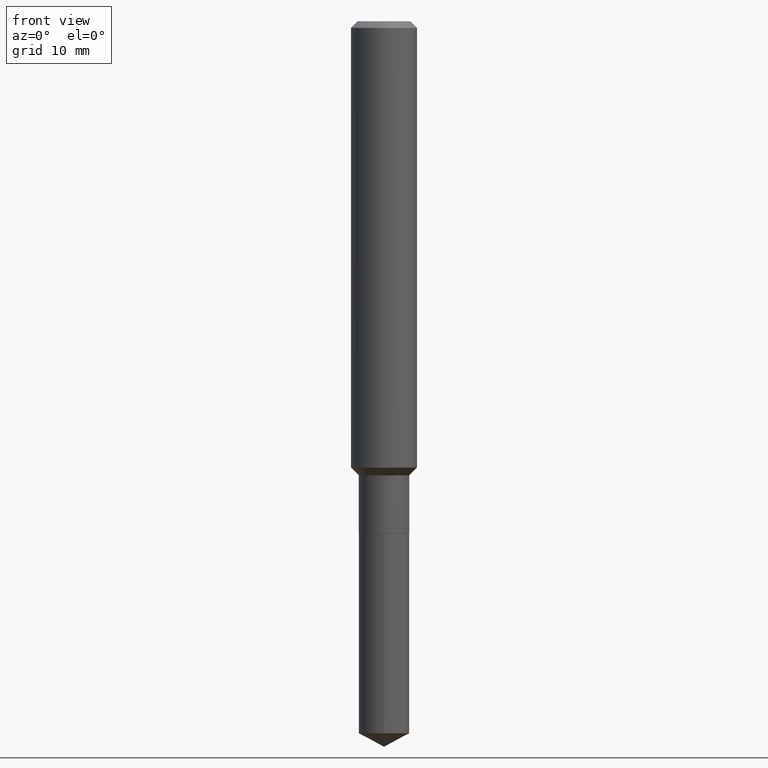
[diagram: clean part render]
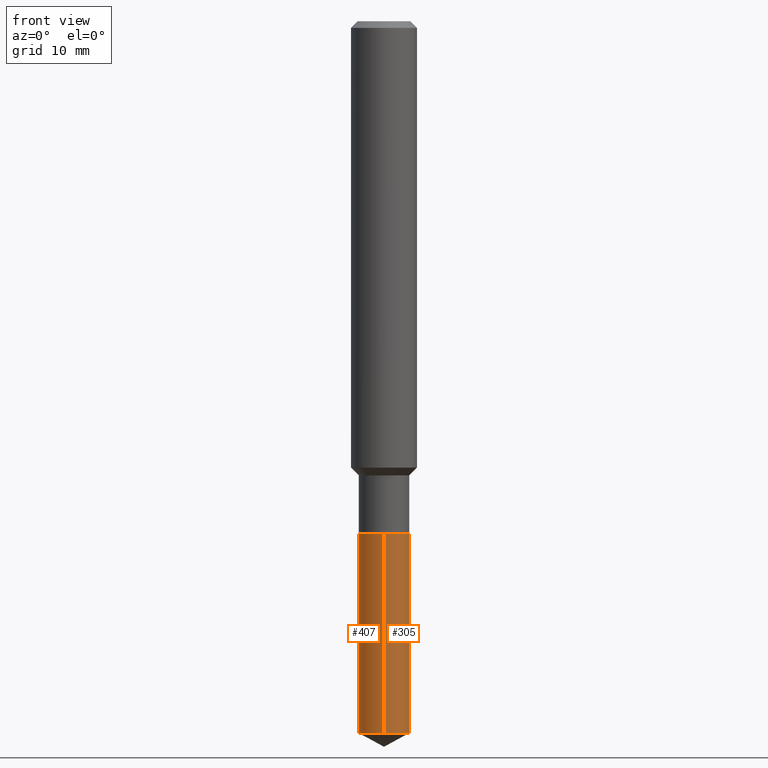
[diagram: same view with one multi-face feature highlighted, each face labeled with its STEP entity id]
A machine part, front view. The highlighted faces form ONE feature: a constant-radius fillet chain: 2 tangent blend faces with common blend radius 2.3 mm. The faces share edges in the B-rep.
Their STEP definitions:
[1] entity #407 (Cylinder):
#13 = EDGE_CURVE ( 'NONE', #437, #378, #393, .T. ) ;
#34 = AXIS2_PLACEMENT_3D ( 'NONE', #229, #97, #377 ) ;
#57 = CARTESIAN_POINT ( 'NONE',  ( -6.323072704644292482E-16, -0.09055000000000894278, -2.550253710963052978 ) ) ;
#70 = ORIENTED_EDGE ( 'NONE', *, *, #390, .T. ) ;
#71 = LINE ( 'NONE', #75, #188 ) ;
#75 = CARTESIAN_POINT ( 'NONE',  ( 6.433964472308155251E-16, 0.09054999999999360782, -1.834600000000000231 ) ) ;
#90 = VERTEX_POINT ( 'NONE', #276 ) ;
#97 = DIRECTION ( 'NONE',  ( -2.445441495355086560E-29, 3.491520449506213209E-15, 1.000000000000000000 ) ) ;
#129 = DIRECTION ( 'NONE',  ( -6.982962677686266711E-15, -1.000000000000000000, 3.016949744521549444E-15 ) ) ;
#154 = AXIS2_PLACEMENT_3D ( 'NONE', #298, #224, #371 ) ;
#164 = VECTOR ( 'NONE', #350, 39.37007874015748143 ) ;
#173 = DIRECTION ( 'NONE',  ( -2.445441495355086560E-29, 3.491520449506213209E-15, 1.000000000000000000 ) ) ;
#187 = CIRCLE ( 'NONE', #331, 0.09055000000000000548 ) ;
#188 = VECTOR ( 'NONE', #173, 39.37007874015748143 ) ;
#214 = ORIENTED_EDGE ( 'NONE', *, *, #218, .F. ) ;
#218 = EDGE_CURVE ( 'NONE', #443, #378, #187, .T. ) ;
#219 = CARTESIAN_POINT ( 'NONE',  ( 6.433964472308331759E-16, 0.09054999999999360782, -1.834600000000000231 ) ) ;
#224 = DIRECTION ( 'NONE',  ( -2.445441495355086560E-29, 3.491520449506213209E-15, 1.000000000000000000 ) ) ;
#229 = CARTESIAN_POINT ( 'NONE',  ( 4.486457071827251481E-29, -6.405471664241634119E-15, -1.834599999999999786 ) ) ;
#247 = DIRECTION ( 'NONE',  ( -2.445441495355086560E-29, 3.491520449506213209E-15, 1.000000000000000000 ) ) ;
#276 = CARTESIAN_POINT ( 'NONE',  ( 6.433964472308332745E-16, 0.09054999999999110982, -2.550253710963054310 ) ) ;
#298 = CARTESIAN_POINT ( 'NONE',  ( 6.236546352921157625E-29, -8.904191230834146069E-15, -2.550253710963053422 ) ) ;
#315 = CARTESIAN_POINT ( 'NONE',  ( -6.323072704644466031E-16, -0.09055000000000641702, -1.834599999999999564 ) ) ;
#331 = AXIS2_PLACEMENT_3D ( 'NONE', #401, #247, #129 ) ;
#336 = CYLINDRICAL_SURFACE ( 'NONE', #34, 0.09055000000000000548 ) ;
#350 = DIRECTION ( 'NONE',  ( -2.445441495355086560E-29, 3.491520449506213209E-15, 1.000000000000000000 ) ) ;
#371 = DIRECTION ( 'NONE',  ( -6.982962677686266711E-15, -1.000000000000000000, 6.033899489043098888E-15 ) ) ;
#377 = DIRECTION ( 'NONE',  ( -6.982962677686266711E-15, -1.000000000000000000, 3.016949744521549444E-15 ) ) ;
#378 = VERTEX_POINT ( 'NONE', #409 ) ;
#390 = EDGE_CURVE ( 'NONE', #90, #437, #400, .T. ) ;
#393 = LINE ( 'NONE', #315, #164 ) ;
#400 = CIRCLE ( 'NONE', #154, 0.09055000000000000548 ) ;
#401 = CARTESIAN_POINT ( 'NONE',  ( 4.486457071827251481E-29, -6.405471664241634119E-15, -1.834599999999999786 ) ) ;
#406 = EDGE_LOOP ( 'NONE', ( #439, #70, #476, #214 ) ) ;
#407 = ADVANCED_FACE ( 'NONE', ( #475 ), #336, .T. ) ;
#409 = CARTESIAN_POINT ( 'NONE',  ( -6.323072704644466031E-16, -0.09055000000000641702, -1.834599999999999564 ) ) ;
#437 = VERTEX_POINT ( 'NONE', #57 ) ;
#439 = ORIENTED_EDGE ( 'NONE', *, *, #450, .F. ) ;
#443 = VERTEX_POINT ( 'NONE', #219 ) ;
#450 = EDGE_CURVE ( 'NONE', #90, #443, #71, .T. ) ;
#475 = FACE_OUTER_BOUND ( 'NONE', #406, .T. ) ;
#476 = ORIENTED_EDGE ( 'NONE', *, *, #13, .T. ) ;
[2] entity #305 (Cylinder):
#13 = EDGE_CURVE ( 'NONE', #437, #378, #393, .T. ) ;
#16 = ORIENTED_EDGE ( 'NONE', *, *, #92, .T. ) ;
#19 = CIRCLE ( 'NONE', #341, 0.09055000000000000548 ) ;
#21 = EDGE_LOOP ( 'NONE', ( #16, #145, #328, #257 ) ) ;
#22 = CARTESIAN_POINT ( 'NONE',  ( 4.486457071827251481E-29, -6.405471664241634119E-15, -1.834599999999999786 ) ) ;
#57 = CARTESIAN_POINT ( 'NONE',  ( -6.323072704644292482E-16, -0.09055000000000894278, -2.550253710963052978 ) ) ;
#71 = LINE ( 'NONE', #75, #188 ) ;
#75 = CARTESIAN_POINT ( 'NONE',  ( 6.433964472308155251E-16, 0.09054999999999360782, -1.834600000000000231 ) ) ;
#83 = CARTESIAN_POINT ( 'NONE',  ( 6.236546352921157625E-29, -8.904191230834146069E-15, -2.550253710963053422 ) ) ;
#90 = VERTEX_POINT ( 'NONE', #276 ) ;
#92 = EDGE_CURVE ( 'NONE', #437, #90, #262, .T. ) ;
#108 = DIRECTION ( 'NONE',  ( -6.982962677686266711E-15, -1.000000000000000000, 3.016949744521549444E-15 ) ) ;
#141 = CYLINDRICAL_SURFACE ( 'NONE', #281, 0.09055000000000000548 ) ;
#145 = ORIENTED_EDGE ( 'NONE', *, *, #450, .T. ) ;
#149 = DIRECTION ( 'NONE',  ( -2.445441495355086560E-29, 3.491520449506213209E-15, 1.000000000000000000 ) ) ;
#152 = DIRECTION ( 'NONE',  ( -2.445441495355086560E-29, 3.491520449506213209E-15, 1.000000000000000000 ) ) ;
#164 = VECTOR ( 'NONE', #350, 39.37007874015748143 ) ;
#173 = DIRECTION ( 'NONE',  ( -2.445441495355086560E-29, 3.491520449506213209E-15, 1.000000000000000000 ) ) ;
#184 = DIRECTION ( 'NONE',  ( -6.982962677686266711E-15, -1.000000000000000000, 3.016949744521549444E-15 ) ) ;
#188 = VECTOR ( 'NONE', #173, 39.37007874015748143 ) ;
#219 = CARTESIAN_POINT ( 'NONE',  ( 6.433964472308331759E-16, 0.09054999999999360782, -1.834600000000000231 ) ) ;
#257 = ORIENTED_EDGE ( 'NONE', *, *, #13, .F. ) ;
#262 = CIRCLE ( 'NONE', #306, 0.09055000000000000548 ) ;
#276 = CARTESIAN_POINT ( 'NONE',  ( 6.433964472308332745E-16, 0.09054999999999110982, -2.550253710963054310 ) ) ;
#281 = AXIS2_PLACEMENT_3D ( 'NONE', #22, #152, #184 ) ;
#305 = ADVANCED_FACE ( 'NONE', ( #368 ), #141, .T. ) ;
#306 = AXIS2_PLACEMENT_3D ( 'NONE', #83, #457, #342 ) ;
#315 = CARTESIAN_POINT ( 'NONE',  ( -6.323072704644466031E-16, -0.09055000000000641702, -1.834599999999999564 ) ) ;
#328 = ORIENTED_EDGE ( 'NONE', *, *, #480, .F. ) ;
#341 = AXIS2_PLACEMENT_3D ( 'NONE', #441, #149, #108 ) ;
#342 = DIRECTION ( 'NONE',  ( -6.982962677686266711E-15, -1.000000000000000000, 6.033899489043098888E-15 ) ) ;
#350 = DIRECTION ( 'NONE',  ( -2.445441495355086560E-29, 3.491520449506213209E-15, 1.000000000000000000 ) ) ;
#368 = FACE_OUTER_BOUND ( 'NONE', #21, .T. ) ;
#378 = VERTEX_POINT ( 'NONE', #409 ) ;
#393 = LINE ( 'NONE', #315, #164 ) ;
#409 = CARTESIAN_POINT ( 'NONE',  ( -6.323072704644466031E-16, -0.09055000000000641702, -1.834599999999999564 ) ) ;
#437 = VERTEX_POINT ( 'NONE', #57 ) ;
#441 = CARTESIAN_POINT ( 'NONE',  ( 4.486457071827251481E-29, -6.405471664241634119E-15, -1.834599999999999786 ) ) ;
#443 = VERTEX_POINT ( 'NONE', #219 ) ;
#450 = EDGE_CURVE ( 'NONE', #90, #443, #71, .T. ) ;
#457 = DIRECTION ( 'NONE',  ( -2.445441495355086560E-29, 3.491520449506213209E-15, 1.000000000000000000 ) ) ;
#480 = EDGE_CURVE ( 'NONE', #378, #443, #19, .T. ) ;